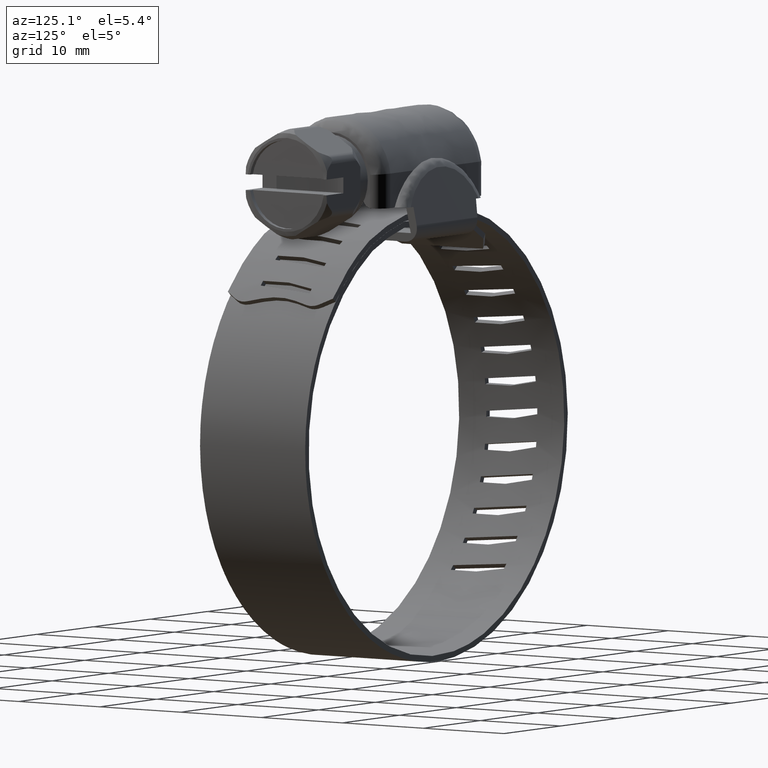
[diagram: clean part render]
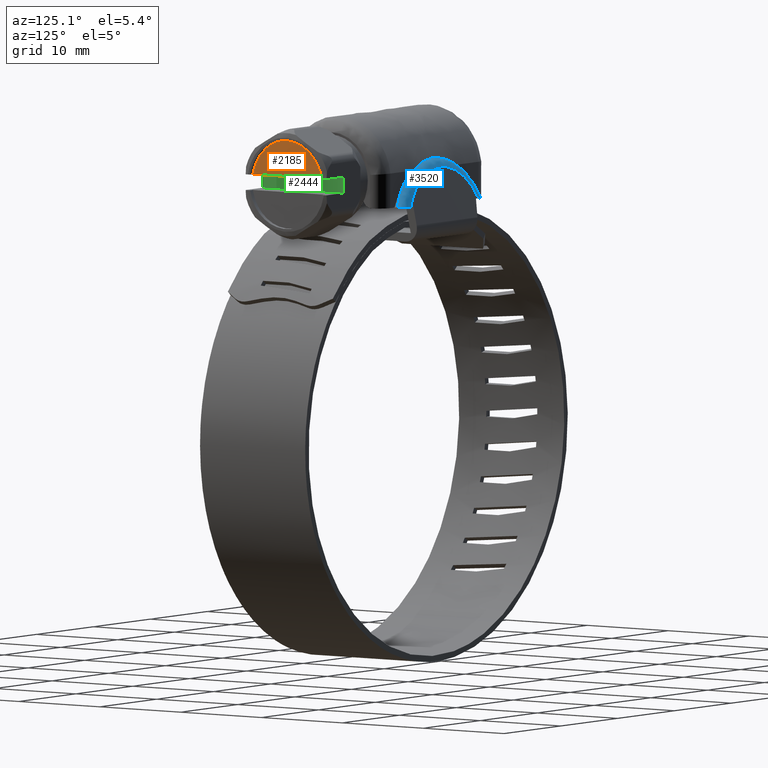
[diagram: same view with three faces highlighted in distinct colors, each labeled with its STEP entity id]
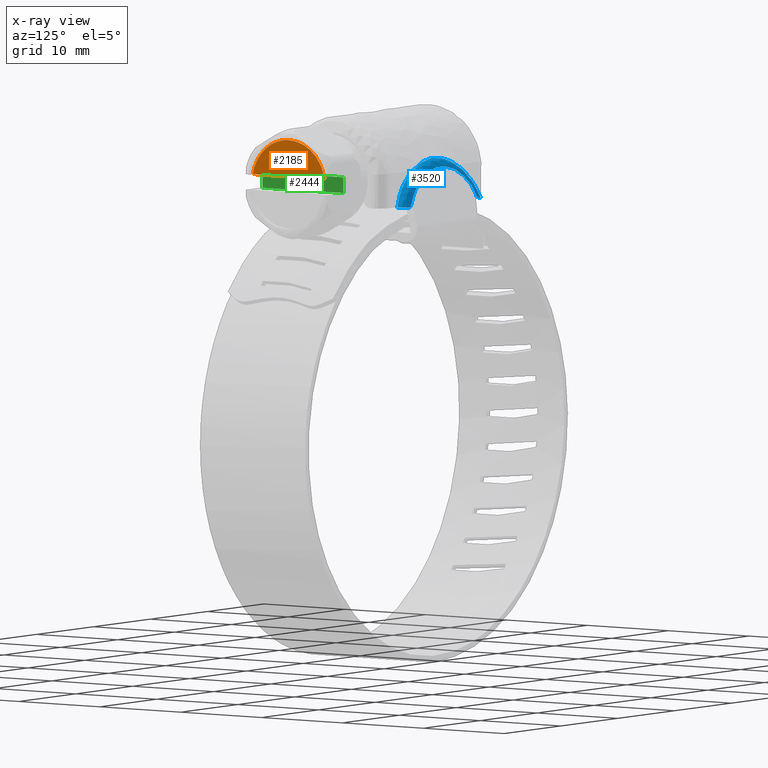
[diagram: x-ray of the same camera — body ghosted, the three highlighted faces saturated]
A machine part, auxiliary view with three faces highlighted in distinct colors.
The next image is the same camera in x-ray (body ghosted, the three faces saturated) — at least one of them is partly hidden behind the body in this view.
Their STEP definitions:

[orange] entity #2185 — the highlighted face is a freeform B-spline surface patch.
#2146=CARTESIAN_POINT('',(16.750000000000000,-4.870706995783974,20.511934777175441));
#2147=CARTESIAN_POINT('',(16.750000000000000,4.870707154152966,20.511934777175441));
#2148=CARTESIAN_POINT('',(16.750000000000000,-4.870706995783974,16.442305965762809));
#2149=CARTESIAN_POINT('',(16.750000000000000,4.870707154152966,16.442305965762809));
#2150=B_SPLINE_SURFACE_WITH_KNOTS('',1,1,((#2146,#2148),(#2147,#2149)),.UNSPECIFIED.,.F.,.F.,.U.,(2,2),(2,2),(0.0,9.741414149936940),(0.0,4.069628811412638),.UNSPECIFIED.);
#2151=CARTESIAN_POINT('',(16.750000000000000,4.428317965096910,16.627121000000098));
#2152=VERTEX_POINT('',#2151);
#2153=CARTESIAN_POINT('',(16.750000000000000,-4.428317965096910,16.627121000000098));
#2154=VERTEX_POINT('',#2153);
#2155=CARTESIAN_POINT('',(16.750000000000000,4.428317965096910,16.627121000000098));
#2156=CARTESIAN_POINT('',(16.750000000000011,4.364594576206882,16.980311393110139));
#2157=CARTESIAN_POINT('',(16.749999999999940,4.195432437035371,17.529912114602940));
#2158=CARTESIAN_POINT('',(16.750000000000071,3.826882632763724,18.223019737872630));
#2159=CARTESIAN_POINT('',(16.749999999999989,3.451087764127502,18.738372558166159));
#2160=CARTESIAN_POINT('',(16.749999999999950,3.006421895644998,19.195628161582540));
#2161=CARTESIAN_POINT('',(16.750000000000139,2.527633715092417,19.565654404142670));
#2162=CARTESIAN_POINT('',(16.749999999999801,1.991017061863095,19.878230578615831));
#2163=CARTESIAN_POINT('',(16.750000000000121,1.295387890612542,20.165492371357839));
#2164=CARTESIAN_POINT('',(16.749999999999950,0.458790371952211,20.336105690425750));
#2165=CARTESIAN_POINT('',(16.750000000000021,-0.393123193880123,20.331428834905289));
#2166=CARTESIAN_POINT('',(16.750000000000011,-1.085989706752580,20.209610766697391));
#2167=CARTESIAN_POINT('',(16.750000000000000,-1.800938794280464,19.976388123164909));
#2168=CARTESIAN_POINT('',(16.749999999999979,-2.467170819578732,19.621530107647470));
#2169=CARTESIAN_POINT('',(16.750000000000050,-3.131753590407794,19.090355094730558));
#2170=CARTESIAN_POINT('',(16.749999999999901,-3.586990487279050,18.573907748722469));
#2171=CARTESIAN_POINT('',(16.750000000000291,-3.975052395996829,17.968793069668539));
#2172=CARTESIAN_POINT('',(16.749999999999250,-4.254232303518512,17.358218458421010));
#2173=CARTESIAN_POINT('',(16.750000000000728,-4.384831261727956,16.867922300429431));
#2174=CARTESIAN_POINT('',(16.750000000000000,-4.428317965096910,16.627121000000098));
#2175=B_SPLINE_CURVE_WITH_KNOTS('',3,(#2155,#2156,#2157,#2158,#2159,#2160,#2161,#2162,#2163,#2164,#2165,#2166,#2167,#2168,#2169,#2170,#2171,#2172,#2173,#2174),.UNSPECIFIED.,.F.,.U.,(4,1,1,1,1,1,1,1,1,1,1,1,1,1,1,1,1,4),(0.000000105436214,1.076657311730568,1.712899394288071,2.349117471972489,2.985349883548302,3.621579355086750,4.159927898302295,4.845083665087199,5.872851347142010,6.704779297156516,7.389962284780077,7.977241486350930,8.956042077494967,9.641212058112103,10.522139135771759,11.011555320332020,11.794586510728760,12.528678529458629),.UNSPECIFIED.);
#2176=EDGE_CURVE('',#2152,#2154,#2175,.T.);
#2177=ORIENTED_EDGE('',*,*,#2176,.T.);
#2178=CARTESIAN_POINT('',(16.750000000000000,4.428317965096910,16.627121000000098));
#2179=CARTESIAN_POINT('',(16.750000000000000,-4.428317965096910,16.627121000000098));
#2180=QUASI_UNIFORM_CURVE('',1,(#2178,#2179),.UNSPECIFIED.,.F.,.U.);
#2181=EDGE_CURVE('',#2152,#2154,#2180,.T.);
#2182=ORIENTED_EDGE('',*,*,#2181,.F.);
#2183=EDGE_LOOP('',(#2177,#2182));
#2184=FACE_OUTER_BOUND('',#2183,.T.);
#2185=ADVANCED_FACE('',(#2184),#2150,.F.);

[blue] entity #3520 — the highlighted face is a freeform B-spline surface patch.
#3265=CARTESIAN_POINT('',(6.129863307095612,7.573081554252433,12.710637953687559));
#3266=CARTESIAN_POINT('',(5.871553260712822,7.480630370555248,13.302972934172038));
#3267=CARTESIAN_POINT('',(5.526856727804433,7.394082741280334,13.857483825729954));
#3268=CARTESIAN_POINT('',(4.693205414128268,7.239948394197200,14.845022998516525));
#3269=CARTESIAN_POINT('',(4.204362847983529,7.172384622891526,15.277904261442030));
#3270=CARTESIAN_POINT('',(3.123210042759491,7.061872331808228,15.985956805112179));
#3271=CARTESIAN_POINT('',(2.531025254394798,7.018936462995022,16.261047031094044));
#3272=CARTESIAN_POINT('',(1.292586431022783,6.961269521869280,16.630519276665137));
#3273=CARTESIAN_POINT('',(0.646475570025760,6.946545042128080,16.724859057632308));
#3274=CARTESIAN_POINT('',(-0.645903470091309,6.946536413814445,16.724914339260756));
#3275=CARTESIAN_POINT('',(-1.292022399709215,6.961252266227733,16.630629833606516));
#3276=CARTESIAN_POINT('',(-2.530492827536830,7.018902670862596,16.261263537376660));
#3277=CARTESIAN_POINT('',(-3.122701148176192,7.061830632404460,15.986223973303298));
#3278=CARTESIAN_POINT('',(-4.203914523922244,7.172328487270221,15.278263922517421));
#3279=CARTESIAN_POINT('',(-4.692794121487531,7.239885731289274,14.845424479934696));
#3280=CARTESIAN_POINT('',(-5.526529915352762,7.394008947179500,13.857956624730825));
#3281=CARTESIAN_POINT('',(-5.871273884461064,7.480551973988308,13.303475221185289));
#3282=CARTESIAN_POINT('',(-6.129634602620021,7.572999708894558,12.711162337113727));
#3283=CARTESIAN_POINT('',(6.132995040482617,7.572873420566874,12.711971466765961));
#3284=CARTESIAN_POINT('',(5.874531938887540,7.480377162652655,13.304595237879120));
#3285=CARTESIAN_POINT('',(5.529643786207108,7.393788572584999,13.859368565345394));
#3286=CARTESIAN_POINT('',(4.695547578865589,7.239582057228043,14.847370120454798));
#3287=CARTESIAN_POINT('',(4.206451900138932,7.171987283452002,15.280450016290644));
#3288=CARTESIAN_POINT('',(3.124750308088368,7.061424551827482,15.988825732642907));
#3289=CARTESIAN_POINT('',(2.532270528866199,7.018469400546709,16.264039501445886));
#3290=CARTESIAN_POINT('',(1.293219498816745,6.960776550711142,16.633677744189935));
#3291=CARTESIAN_POINT('',(0.646792467516757,6.946045530343769,16.728059430966429));
#3292=CARTESIAN_POINT('',(-0.646220087320178,6.946036898174212,16.728114737299784));
#3293=CARTESIAN_POINT('',(-1.292655190376760,6.960759287370770,16.633788350457756));
#3294=CARTESIAN_POINT('',(-2.531737837431345,7.018435593204665,16.264256105176532));
#3295=CARTESIAN_POINT('',(-3.124241158268639,7.061382833569962,15.989093021630067));
#3296=CARTESIAN_POINT('',(-4.206003345642176,7.171931122078316,15.280809842361572));
#3297=CARTESIAN_POINT('',(-4.695136071111844,7.239519365330050,14.847771787612437));
#3298=CARTESIAN_POINT('',(-5.529316795001269,7.393714743643319,13.859841587571642));
#3299=CARTESIAN_POINT('',(-5.874252404733863,7.480298728638563,13.305097764816473));
#3300=CARTESIAN_POINT('',(-6.132766201505663,7.572791535563502,12.712496104200964));
#3301=CARTESIAN_POINT('',(6.999505812395898,7.515285478603469,13.080937564493343));
#3302=CARTESIAN_POINT('',(6.693387369693191,7.410768882066451,13.750575677201926));
#3303=CARTESIAN_POINT('',(6.291280331970226,7.313399288755020,14.374422921217038));
#3304=CARTESIAN_POINT('',(5.328963198894915,7.140509795247578,15.482126367154828));
#3305=CARTESIAN_POINT('',(4.768879668665040,7.065013058925633,15.965834158095689));
#3306=CARTESIAN_POINT('',(3.536420598503607,6.941745356782003,16.755610654443782));
#3307=CARTESIAN_POINT('',(2.864168254835878,6.893985226140359,17.061609938821910));
#3308=CARTESIAN_POINT('',(1.461318670756225,6.829877389099209,17.472349021705284));
#3309=CARTESIAN_POINT('',(0.730858819088484,6.813535382844558,17.577052299352371));
#3310=CARTESIAN_POINT('',(-0.730212044416691,6.813525801499305,17.577113687060745));
#3311=CARTESIAN_POINT('',(-1.460680589511505,6.829858227264029,17.472471791636696));
#3312=CARTESIAN_POINT('',(-2.863564317443942,6.893947638686123,17.061850761739098));
#3313=CARTESIAN_POINT('',(-3.535842108593261,6.941698925822644,16.755908137722713));
#3314=CARTESIAN_POINT('',(-4.768366980029842,7.064950362847235,15.966235852038700));
#3315=CARTESIAN_POINT('',(-5.328490858769038,7.140439678943476,15.482575602505360));
#3316=CARTESIAN_POINT('',(-6.290900650023821,7.313316344177969,14.374954347340216));
#3317=CARTESIAN_POINT('',(-6.693059987253497,7.410680531138259,13.751141741859252));
#3318=CARTESIAN_POINT('',(-6.999234788606576,7.515192954575704,13.081530366185961));
#3319=CARTESIAN_POINT('',(7.052930438552399,6.581235409839895,12.958454490809142));
#3320=CARTESIAN_POINT('',(6.755716204132347,6.488716062028611,13.639975750062888));
#3321=CARTESIAN_POINT('',(6.359109850416078,6.402105948377157,14.277972293934935));
#3322=CARTESIAN_POINT('',(5.399919661497953,6.247861487606863,15.414194026728048));
#3323=CARTESIAN_POINT('',(4.837464631371107,6.180250226387033,15.912247540651071));
#3324=CARTESIAN_POINT('',(3.593507249732501,6.069660643292998,16.726902969289164));
#3325=CARTESIAN_POINT('',(2.912150629165555,6.026695128854759,17.043409079909868));
#3326=CARTESIAN_POINT('',(1.487224904072522,5.968988381480966,17.468508214896250));
#3327=CARTESIAN_POINT('',(0.743822968364432,5.954253827115703,17.577051190609648));
#3328=CARTESIAN_POINT('',(-0.743164721075212,5.954245192872808,17.577114795312770));
#3329=CARTESIAN_POINT('',(-1.486575940239287,5.968971113993425,17.468635416811086));
#3330=CARTESIAN_POINT('',(-2.911538028444475,6.026661313357565,17.043658182660604));
#3331=CARTESIAN_POINT('',(-3.592921724354328,6.069618914945928,16.727210361323490));
#3332=CARTESIAN_POINT('',(-4.836948796496643,6.180194051331732,15.912661351183109));
#3333=CARTESIAN_POINT('',(-5.399446433542495,6.247798780368671,15.414655953998434));
#3334=CARTESIAN_POINT('',(-6.358733822615963,6.402032101182240,14.278516276634065));
#3335=CARTESIAN_POINT('',(-6.755394754720976,6.488637608517103,13.640553660742935));
#3336=CARTESIAN_POINT('',(-7.052667290698379,6.581153504334976,12.959057825721459));
#3337=CARTESIAN_POINT('',(7.053123898518053,6.577853050294794,12.958010958061541));
#3338=CARTESIAN_POINT('',(6.755943370583158,6.485355507183128,13.639572652634008));
#3339=CARTESIAN_POINT('',(6.359358539030508,6.398764803056515,14.277618669533508));
#3340=CARTESIAN_POINT('',(5.400182542719685,6.244554382530285,15.413942349347424));
#3341=CARTESIAN_POINT('',(4.837719872350028,6.176957555186530,15.912048116460198));
#3342=CARTESIAN_POINT('',(3.593721252600621,6.066391426656304,16.726795351714348));
#3343=CARTESIAN_POINT('',(2.912331006337240,6.023434778841587,17.043340658546850));
#3344=CARTESIAN_POINT('',(1.487322656594881,5.965739971303390,17.468493722301009));
#3345=CARTESIAN_POINT('',(0.743871932679520,5.951008405302952,17.577051186422029));
#3346=CARTESIAN_POINT('',(-0.743213642086570,5.950999772831607,17.577114799498524));
#3347=CARTESIAN_POINT('',(-1.486673651806977,5.965722707346052,17.468620940923042));
#3348=CARTESIAN_POINT('',(-2.911718373445071,6.023400970357295,17.043589792273124));
#3349=CARTESIAN_POINT('',(-3.593135701431858,6.066349707022679,16.727102780600589));
#3350=CARTESIAN_POINT('',(-4.837204026717504,6.176901392133853,15.912461971341772));
#3351=CARTESIAN_POINT('',(-5.399709312577861,6.244491688866781,15.414404322583437));
#3352=CARTESIAN_POINT('',(-6.358982525882358,6.398690972362942,14.278162696486275));
#3353=CARTESIAN_POINT('',(-6.755621944027561,6.485277071520805,13.640150604302912));
#3354=CARTESIAN_POINT('',(-7.052860780294032,6.577771163840412,12.958614328572621));
#3362=(BOUNDED_SURFACE()B_SPLINE_SURFACE(3,2,((#3265,#3283,#3301,#3319,#3337),(#3266,#3284,#3302,#3320,#3338),(#3267,#3285,#3303,#3321,#3339),(#3268,#3286,#3304,#3322,#3340),(#3269,#3287,#3305,#3323,#3341),(#3270,#3288,#3306,#3324,#3342),(#3271,#3289,#3307,#3325,#3343),(#3272,#3290,#3308,#3326,#3344),(#3273,#3291,#3309,#3327,#3345),(#3274,#3292,#3310,#3328,#3346),(#3275,#3293,#3311,#3329,#3347),(#3276,#3294,#3312,#3330,#3348),(#3277,#3295,#3313,#3331,#3349),(#3278,#3296,#3314,#3332,#3350),(#3279,#3297,#3315,#3333,#3351),(#3280,#3298,#3316,#3334,#3352),(#3281,#3299,#3317,#3335,#3353),(#3282,#3300,#3318,#3336,#3354)),.UNSPECIFIED.,.F.,.F.,.U.)B_SPLINE_SURFACE_WITH_KNOTS((4,2,2,2,2,2,2,2,4),(3,1,1,3),(0.0,2.247671253573495,4.495342507146990,6.743013760720482,8.990685014293977,11.238356267867470,13.486027521440960,15.733698775014460,17.981370028587950),(0.0,0.007923442635572,1.592952330432217,1.600891210016724),.UNSPECIFIED.)GEOMETRIC_REPRESENTATION_ITEM()RATIONAL_B_SPLINE_SURFACE(((1.002713628068578,1.001356814034289,0.728578909619308,1.001359457464667,1.002718914929334),(1.002666762474492,1.001333381237246,0.733266475610901,1.001335979014376,1.002671958028752),(1.002623367419525,1.001311683709763,0.737606913150100,1.001314239214406,1.002628478428812),(1.002546607804919,1.001273303902460,0.745284523259931,1.001275784633150,1.002551569266300),(1.002513258664570,1.001256629332285,0.748620153570373,1.001259077576530,1.002518155153060),(1.002458948804118,1.001229474402059,0.754052306087124,1.001231869741362,1.002463739482724),(1.002437989770254,1.001218994885127,0.756148659633378,1.001221369807577,1.002442739615153),(1.002409883102732,1.001204941551366,0.758959930062853,1.001207289094227,1.002414578188455),(1.002402736186288,1.001201368093144,0.759674775209313,1.001203708673969,1.002407417347939),(1.002402731992638,1.001201365996319,0.759675194664370,1.001203706573059,1.002407413146119),(1.002409874715531,1.001204937357765,0.758960768963087,1.001207284892457,1.002414569784913),(1.002437973276992,1.001218986638496,0.756150309313756,1.001221361544879,1.002442723089758),(1.002458928398584,1.001229464199292,0.754054347078824,1.001231859518717,1.002463719037435),(1.002513230990449,1.001256615495225,0.748622921576838,1.001259063712511,1.002518127425022),(1.002546576774838,1.001273288387419,0.745287626934493,1.001275769087882,1.002551538175764),(1.002623330493603,1.001311665246802,0.737610606535385,1.001314220715474,1.002628441430949),(1.002666723008662,1.001333361504331,0.733270423041556,1.001335959243016,1.002671918486032),(1.002713586588167,1.001356793294083,0.728583058551316,1.001359436684054,1.002718873368108)))REPRESENTATION_ITEM('')SURFACE());
#3363=CARTESIAN_POINT('',(5.964274546191691,7.515887096035680,13.077083000000201));
#3364=VERTEX_POINT('',#3363);
#3365=CARTESIAN_POINT('',(6.999273225263380,6.604987965506259,13.077102000000201));
#3366=VERTEX_POINT('',#3365);
#3367=CARTESIAN_POINT('',(5.964274546191691,7.515887096035680,13.077083000000201));
#3368=CARTESIAN_POINT('',(6.028415981228038,7.515886992472053,13.077083663532440));
#3369=CARTESIAN_POINT('',(6.091751809899517,7.510938700309628,13.077084363780781));
#3370=CARTESIAN_POINT('',(6.216779169463165,7.490942524075838,13.077085839217579));
#3371=CARTESIAN_POINT('',(6.278472241768448,7.475904107658995,13.077086614335780));
#3372=CARTESIAN_POINT('',(6.400032593069749,7.434612902607645,13.077088247784070));
#3373=CARTESIAN_POINT('',(6.458098300753148,7.408956052139783,13.077089082051620));
#3374=CARTESIAN_POINT('',(6.568442150897046,7.347603554334182,13.077090782111989));
#3375=CARTESIAN_POINT('',(6.620774951898504,7.311902250863070,13.077091648521730));
#3376=CARTESIAN_POINT('',(6.719114002167152,7.229302081959949,13.077093417840571));
#3377=CARTESIAN_POINT('',(6.763530266715735,7.183682016038415,13.077094292658931));
#3378=CARTESIAN_POINT('',(6.822470992409777,7.109387235550514,13.077095578794340));
#3379=CARTESIAN_POINT('',(6.840864616995977,7.083609129253023,13.077096003765480));
#3380=CARTESIAN_POINT('',(6.875059671759336,7.029957335610267,13.077096845970850));
#3381=CARTESIAN_POINT('',(6.890948153422007,7.001898774270095,13.077097265788771));
#3382=CARTESIAN_POINT('',(6.933761008287979,6.915885769760693,13.077098491770970));
#3383=CARTESIAN_POINT('',(6.955839664667813,6.856421122202138,13.077099261556601));
#3384=CARTESIAN_POINT('',(6.987354443840644,6.733339795511856,13.077100708144680));
#3385=CARTESIAN_POINT('',(6.996734635444506,6.669294685132051,13.077101388269099));
#3386=CARTESIAN_POINT('',(6.999273225263380,6.604987965506259,13.077102000000201));
#3387=B_SPLINE_CURVE_WITH_KNOTS('',3,(#3367,#3368,#3369,#3370,#3371,#3372,#3373,#3374,#3375,#3376,#3377,#3378,#3379,#3380,#3381,#3382,#3383,#3384,#3385,#3386),.UNSPECIFIED.,.F.,.U.,(4,2,2,2,2,2,2,2,2,4),(0.0,0.124999999999999,0.249999999999998,0.374999999999996,0.499999999999995,0.624999999999994,0.687499999999994,0.749999999999995,0.874999999999997,1.0),.UNSPECIFIED.);
#3388=EDGE_CURVE('',#3364,#3366,#3387,.T.);
#3389=ORIENTED_EDGE('',*,*,#3388,.F.);
#3390=CARTESIAN_POINT('',(-5.964274546191691,7.515887096035680,13.077083000000201));
#3391=VERTEX_POINT('',#3390);
#3392=CARTESIAN_POINT('',(-5.964274546191691,7.515887096035680,13.077083000000201));
#3393=CARTESIAN_POINT('',(-4.101574888512248,6.945540499392355,16.731295165618835));
#3394=CARTESIAN_POINT('',(2.153124E-015,6.945540499392355,16.731295165618839));
#3395=CARTESIAN_POINT('',(4.101574888512252,6.945540499392355,16.731295165618835));
#3396=CARTESIAN_POINT('',(5.964274546191691,7.515887096035680,13.077083000000201));
#3404=(BOUNDED_CURVE()B_SPLINE_CURVE(2,(#3392,#3393,#3394,#3395,#3396),.UNSPECIFIED.,.F.,.U.)B_SPLINE_CURVE_WITH_KNOTS((3,2,3),(0.0,0.500000000000000,1.0),.UNSPECIFIED.)CURVE()GEOMETRIC_REPRESENTATION_ITEM()RATIONAL_B_SPLINE_CURVE((1.0,0.852684743861974,1.0,0.852684743861974,1.0))REPRESENTATION_ITEM(''));
#3405=EDGE_CURVE('',#3391,#3364,#3404,.T.);
#3406=ORIENTED_EDGE('',*,*,#3405,.F.);
#3407=CARTESIAN_POINT('',(-6.999273225263435,6.604987965506259,13.077102000000201));
#3408=VERTEX_POINT('',#3407);
#3409=CARTESIAN_POINT('',(-6.999273225263435,6.604987965506259,13.077102000000201));
#3410=CARTESIAN_POINT('',(-6.996741054113700,6.669132089523439,13.077101389815830));
#3411=CARTESIAN_POINT('',(-6.987605549745058,6.731884506723707,13.077100723991760));
#3412=CARTESIAN_POINT('',(-6.964207178149199,6.823969807244503,13.077099643564599));
#3413=CARTESIAN_POINT('',(-6.954780688989381,6.854321997042892,13.077099269712830));
#3414=CARTESIAN_POINT('',(-6.932569552515218,6.914318617173206,13.077098493713461));
#3415=CARTESIAN_POINT('',(-6.919824017204534,6.943798476128289,13.077098093468770));
#3416=CARTESIAN_POINT('',(-6.877466001423931,7.029155322136776,13.077096878165690));
#3417=CARTESIAN_POINT('',(-6.843544531229702,7.082609769108148,13.077096040587200));
#3418=CARTESIAN_POINT('',(-6.784240904734516,7.157678656341945,13.077094743649930));
#3419=CARTESIAN_POINT('',(-6.762987558882048,7.181891833937260,13.077094303343131));
#3420=CARTESIAN_POINT('',(-6.718605151543518,7.227567826170315,13.077093428365840));
#3421=CARTESIAN_POINT('',(-6.672150263252402,7.270772718006695,13.077092554446841));
#3422=CARTESIAN_POINT('',(-6.621709491469238,7.309225084486440,13.077091682563189));
#3423=CARTESIAN_POINT('',(-6.569302101014134,7.345332574322434,13.077090811683780));
#3424=CARTESIAN_POINT('',(-6.541974424742086,7.362286053533577,13.077090374633880));
#3425=CARTESIAN_POINT('',(-6.458318710928968,7.408899776240477,13.077089084844079));
#3426=CARTESIAN_POINT('',(-6.400304083004902,7.434457454743618,13.077088252007830));
#3427=CARTESIAN_POINT('',(-6.280137901025996,7.475400540378482,13.077086636151360));
#3428=CARTESIAN_POINT('',(-6.217566699842851,7.490792772250145,13.077085848727821));
#3429=CARTESIAN_POINT('',(-6.091811876235596,7.510952732402450,13.077084364274411));
#3430=CARTESIAN_POINT('',(-6.028332039510236,7.515886992607586,13.077083662664069));
#3431=CARTESIAN_POINT('',(-5.964274546191691,7.515887096035680,13.077083000000201));
#3432=B_SPLINE_CURVE_WITH_KNOTS('',3,(#3409,#3410,#3411,#3412,#3413,#3414,#3415,#3416,#3417,#3418,#3419,#3420,#3421,#3422,#3423,#3424,#3425,#3426,#3427,#3428,#3429,#3430,#3431),.UNSPECIFIED.,.F.,.U.,(4,2,2,2,2,2,1,2,2,2,2,4),(0.0,0.124999999999998,0.187499999999998,0.249999999999998,0.374999999999999,0.437499999999999,0.499999999999999,0.562499999999999,0.624999999999999,0.750000000000000,0.875000000000000,1.0),.UNSPECIFIED.);
#3433=EDGE_CURVE('',#3408,#3391,#3432,.T.);
#3434=ORIENTED_EDGE('',*,*,#3433,.F.);
#3435=CARTESIAN_POINT('',(-6.999982372892950,6.568573092690100,13.077121000000201));
#3436=VERTEX_POINT('',#3435);
#3437=CARTESIAN_POINT('',(-6.999982372892950,6.568573092690100,13.077121000000201));
#3438=CARTESIAN_POINT('',(-6.999273225263435,6.604987965506259,13.077102000000201));
#3439=QUASI_UNIFORM_CURVE('',1,(#3437,#3438),.UNSPECIFIED.,.F.,.U.);
#3440=EDGE_CURVE('',#3436,#3408,#3439,.T.);
#3441=ORIENTED_EDGE('',*,*,#3440,.F.);
#3442=CARTESIAN_POINT('',(-5.339251292383731,6.250000000000000,15.423114079441900));
#3443=VERTEX_POINT('',#3442);
#3444=CARTESIAN_POINT('',(-5.339251292383731,6.250000000000000,15.423114079441900));
#3445=CARTESIAN_POINT('',(-5.578116846610750,6.281279957666719,15.192766426438039));
#3446=CARTESIAN_POINT('',(-6.229433662351883,6.378302183994462,14.478288409494040));
#3447=CARTESIAN_POINT('',(-6.738100282055703,6.490534557703396,13.651801872959600));
#3448=CARTESIAN_POINT('',(-6.999982372892950,6.568573092690100,13.077121000000201));
#3449=B_SPLINE_CURVE_WITH_KNOTS('',3,(#3444,#3445,#3446,#3447,#3448),.UNSPECIFIED.,.F.,.U.,(4,1,4),(1.952775E-009,0.999935123599768,2.908897176781701),.UNSPECIFIED.);
#3450=EDGE_CURVE('',#3443,#3436,#3449,.T.);
#3451=ORIENTED_EDGE('',*,*,#3450,.F.);
#3452=CARTESIAN_POINT('',(-3.767731017053410,6.249999633170980,16.577121365332999));
#3453=VERTEX_POINT('',#3452);
#3454=CARTESIAN_POINT('',(-3.767731017053410,6.249999633170980,16.577121365332999));
#3455=CARTESIAN_POINT('',(-4.339569927778728,6.249999754728910,16.264268198910148));
#3456=CARTESIAN_POINT('',(-4.869603902022955,6.249999878442224,15.875129988120170));
#3457=CARTESIAN_POINT('',(-5.339251292383731,6.250000000000000,15.423114079441900));
#3458=B_SPLINE_CURVE_WITH_KNOTS('',3,(#3454,#3455,#3456,#3457),.UNSPECIFIED.,.F.,.U.,(4,4),(1.105305E-009,1.955454519166388),.UNSPECIFIED.);
#3459=EDGE_CURVE('',#3453,#3443,#3458,.T.);
#3460=ORIENTED_EDGE('',*,*,#3459,.F.);
#3461=CARTESIAN_POINT('',(3.767731017053410,6.249999633170980,16.577121365332999));
#3462=VERTEX_POINT('',#3461);
#3463=CARTESIAN_POINT('',(3.767731017053410,6.249999633170980,16.577121365332999));
#3464=CARTESIAN_POINT('',(3.479497733507518,6.229237709105721,16.739094258291651));
#3465=CARTESIAN_POINT('',(3.183884050679524,6.204583222070062,16.882071151559519));
#3466=CARTESIAN_POINT('',(2.577243934754033,6.155257050299552,17.129902017543969));
#3467=CARTESIAN_POINT('',(2.266206147951572,6.130582696073145,17.234727400421061));
#3468=CARTESIAN_POINT('',(1.866991587071622,6.103790234875439,17.340766625409820));
#3469=CARTESIAN_POINT('',(1.786771470837745,6.098641773924828,17.360678763914390));
#3470=CARTESIAN_POINT('',(1.626284023453253,6.088887352445290,17.397754646818960));
#3471=CARTESIAN_POINT('',(1.545912167912042,6.084274283725710,17.414946625872581));
#3472=CARTESIAN_POINT('',(1.304413467685331,6.071324521135703,17.462525250646319));
#3473=CARTESIAN_POINT('',(1.142903704963588,6.063881763437935,17.488918202284239));
#3474=CARTESIAN_POINT('',(0.656845720759579,6.045732683460419,17.552320710697689));
#3475=CARTESIAN_POINT('',(0.330773580215899,6.039272260056391,17.573625094178219));
#3476=CARTESIAN_POINT('',(-0.161444854682112,6.039221514861135,17.573795563976041));
#3477=CARTESIAN_POINT('',(-0.326037165918512,6.040794574774885,17.568537633646770));
#3478=CARTESIAN_POINT('',(-0.573723678317318,6.045531948734165,17.552468569044731));
#3479=CARTESIAN_POINT('',(-0.656346915220894,6.047506583847865,17.545745815254921));
#3480=CARTESIAN_POINT('',(-0.820608736505639,6.052185828560140,17.529677062264259));
#3481=CARTESIAN_POINT('',(-0.902400225254582,6.054893035526168,17.520322214310770));
#3482=CARTESIAN_POINT('',(-1.309688241338812,6.070144131077192,17.467030690373669));
#3483=CARTESIAN_POINT('',(-1.630188360697988,6.087907219618561,17.403609516303838));
#3484=CARTESIAN_POINT('',(-2.261015828429809,6.130224851233542,17.236162525183840));
#3485=CARTESIAN_POINT('',(-2.571339628588592,6.154781890041164,17.132122576332680));
#3486=CARTESIAN_POINT('',(-3.029391561703454,6.192018955972971,16.945279975485011));
#3487=CARTESIAN_POINT('',(-3.180366883374803,6.204442304778198,16.878030458831791));
#3488=CARTESIAN_POINT('',(-3.477353567144340,6.228231820699066,16.734492306269210));
#3489=CARTESIAN_POINT('',(-3.623625442391634,6.239619468304403,16.658101592606808));
#3490=CARTESIAN_POINT('',(-3.767731017053410,6.249999633170980,16.577121365332999));
#3491=B_SPLINE_CURVE_WITH_KNOTS('',3,(#3463,#3464,#3465,#3466,#3467,#3468,#3469,#3470,#3471,#3472,#3473,#3474,#3475,#3476,#3477,#3478,#3479,#3480,#3481,#3482,#3483,#3484,#3485,#3486,#3487,#3488,#3489,#3490),.UNSPECIFIED.,.F.,.U.,(4,2,2,2,2,2,2,2,2,2,2,2,2,4),(0.000000039879375,0.125000000000000,0.250000000000001,0.281250000000000,0.312500000000000,0.375000000000000,0.500000000000000,0.562500000000000,0.593749999999999,0.624999999999999,0.749999999999999,0.875000000000000,0.937500000000000,0.999999982445228),.UNSPECIFIED.);
#3492=EDGE_CURVE('',#3462,#3453,#3491,.T.);
#3493=ORIENTED_EDGE('',*,*,#3492,.F.);
#3494=CARTESIAN_POINT('',(5.339251292383731,6.250000000000000,15.423114079441900));
#3495=VERTEX_POINT('',#3494);
#3496=CARTESIAN_POINT('',(5.339251292383731,6.250000000000000,15.423114079441900));
#3497=CARTESIAN_POINT('',(4.869415388004969,6.249999878438383,15.874907804822330));
#3498=CARTESIAN_POINT('',(4.339488682157391,6.249999754732500,16.264125200382299));
#3499=CARTESIAN_POINT('',(3.767731017053410,6.249999633170980,16.577121365332999));
#3500=B_SPLINE_CURVE_WITH_KNOTS('',3,(#3496,#3497,#3498,#3499),.UNSPECIFIED.,.F.,.U.,(4,4),(1.093990E-009,1.955424421444504),.UNSPECIFIED.);
#3501=EDGE_CURVE('',#3495,#3462,#3500,.T.);
#3502=ORIENTED_EDGE('',*,*,#3501,.F.);
#3503=CARTESIAN_POINT('',(6.999982372892950,6.568573092690100,13.077121000000201));
#3504=VERTEX_POINT('',#3503);
#3505=CARTESIAN_POINT('',(6.999982372892950,6.568573092690100,13.077121000000201));
#3506=CARTESIAN_POINT('',(6.850279451620624,6.523984521034337,13.405474156392980));
#3507=CARTESIAN_POINT('',(6.388858332674115,6.408863838389809,14.253230388735719));
#3508=CARTESIAN_POINT('',(5.773705102226651,6.306855612247924,15.004425634241301));
#3509=CARTESIAN_POINT('',(5.339251292383731,6.250000000000000,15.423114079441900));
#3510=B_SPLINE_CURVE_WITH_KNOTS('',3,(#3505,#3506,#3507,#3508,#3509),.UNSPECIFIED.,.F.,.U.,(4,1,4),(1.955092E-009,1.090843507029536,2.908910668808316),.UNSPECIFIED.);
#3511=EDGE_CURVE('',#3504,#3495,#3510,.T.);
#3512=ORIENTED_EDGE('',*,*,#3511,.F.);
#3513=CARTESIAN_POINT('',(6.999273225263380,6.604987965506259,13.077102000000201));
#3514=CARTESIAN_POINT('',(6.999982372892950,6.568573092690100,13.077121000000201));
#3515=QUASI_UNIFORM_CURVE('',1,(#3513,#3514),.UNSPECIFIED.,.F.,.U.);
#3516=EDGE_CURVE('',#3366,#3504,#3515,.T.);
#3517=ORIENTED_EDGE('',*,*,#3516,.F.);
#3518=EDGE_LOOP('',(#3389,#3406,#3434,#3441,#3451,#3460,#3493,#3502,#3512,#3517));
#3519=FACE_OUTER_BOUND('',#3518,.T.);
#3520=ADVANCED_FACE('',(#3519),#3362,.T.);

[green] entity #2444 — the highlighted face is a freeform B-spline surface patch.
#2361=CARTESIAN_POINT('',(14.250000000000000,5.0,15.027121000000200));
#2362=VERTEX_POINT('',#2361);
#2368=CARTESIAN_POINT('',(14.250000000000000,-5.0,15.027121000000200));
#2369=VERTEX_POINT('',#2368);
#2370=CARTESIAN_POINT('',(14.250000000000000,5.0,15.027121000000200));
#2371=CARTESIAN_POINT('',(14.250000000000000,-5.0,15.027121000000200));
#2372=QUASI_UNIFORM_CURVE('',1,(#2370,#2371),.UNSPECIFIED.,.F.,.U.);
#2373=EDGE_CURVE('',#2362,#2369,#2372,.T.);
#2389=CARTESIAN_POINT('',(14.250000000000000,-5.0,16.627121000000098));
#2390=VERTEX_POINT('',#2389);
#2396=CARTESIAN_POINT('',(14.250000000000000,5.0,16.627121000000098));
#2397=VERTEX_POINT('',#2396);
#2398=CARTESIAN_POINT('',(14.250000000000000,-5.0,16.627121000000098));
#2399=CARTESIAN_POINT('',(14.250000000000000,5.0,16.627121000000098));
#2400=QUASI_UNIFORM_CURVE('',1,(#2398,#2399),.UNSPECIFIED.,.F.,.U.);
#2401=EDGE_CURVE('',#2390,#2397,#2400,.T.);
#2425=CARTESIAN_POINT('',(14.250000000000000,-5.499499980618060,16.707040984008650));
#2426=CARTESIAN_POINT('',(14.250000000000000,5.499500248838961,16.707040984008650));
#2427=CARTESIAN_POINT('',(14.250000000000000,-5.499499980618060,14.947200601143320));
#2428=CARTESIAN_POINT('',(14.250000000000000,5.499500248838961,14.947200601143320));
#2429=B_SPLINE_SURFACE_WITH_KNOTS('',1,1,((#2425,#2427),(#2426,#2428)),.UNSPECIFIED.,.F.,.F.,.U.,(2,2),(2,2),(0.0,10.999000229457019),(0.041708341662213,0.958291874404624),.UNSPECIFIED.);
#2430=CARTESIAN_POINT('',(14.250000000000000,5.0,15.027121000000200));
#2431=CARTESIAN_POINT('',(14.250000000000000,5.0,16.627121000000098));
#2432=QUASI_UNIFORM_CURVE('',1,(#2430,#2431),.UNSPECIFIED.,.F.,.U.);
#2433=EDGE_CURVE('',#2362,#2397,#2432,.T.);
#2434=ORIENTED_EDGE('',*,*,#2433,.T.);
#2435=ORIENTED_EDGE('',*,*,#2401,.F.);
#2436=CARTESIAN_POINT('',(14.250000000000000,-5.0,16.627121000000098));
#2437=CARTESIAN_POINT('',(14.250000000000000,-5.0,15.027121000000200));
#2438=QUASI_UNIFORM_CURVE('',1,(#2436,#2437),.UNSPECIFIED.,.F.,.U.);
#2439=EDGE_CURVE('',#2390,#2369,#2438,.T.);
#2440=ORIENTED_EDGE('',*,*,#2439,.T.);
#2441=ORIENTED_EDGE('',*,*,#2373,.F.);
#2442=EDGE_LOOP('',(#2434,#2435,#2440,#2441));
#2443=FACE_OUTER_BOUND('',#2442,.T.);
#2444=ADVANCED_FACE('',(#2443),#2429,.F.);